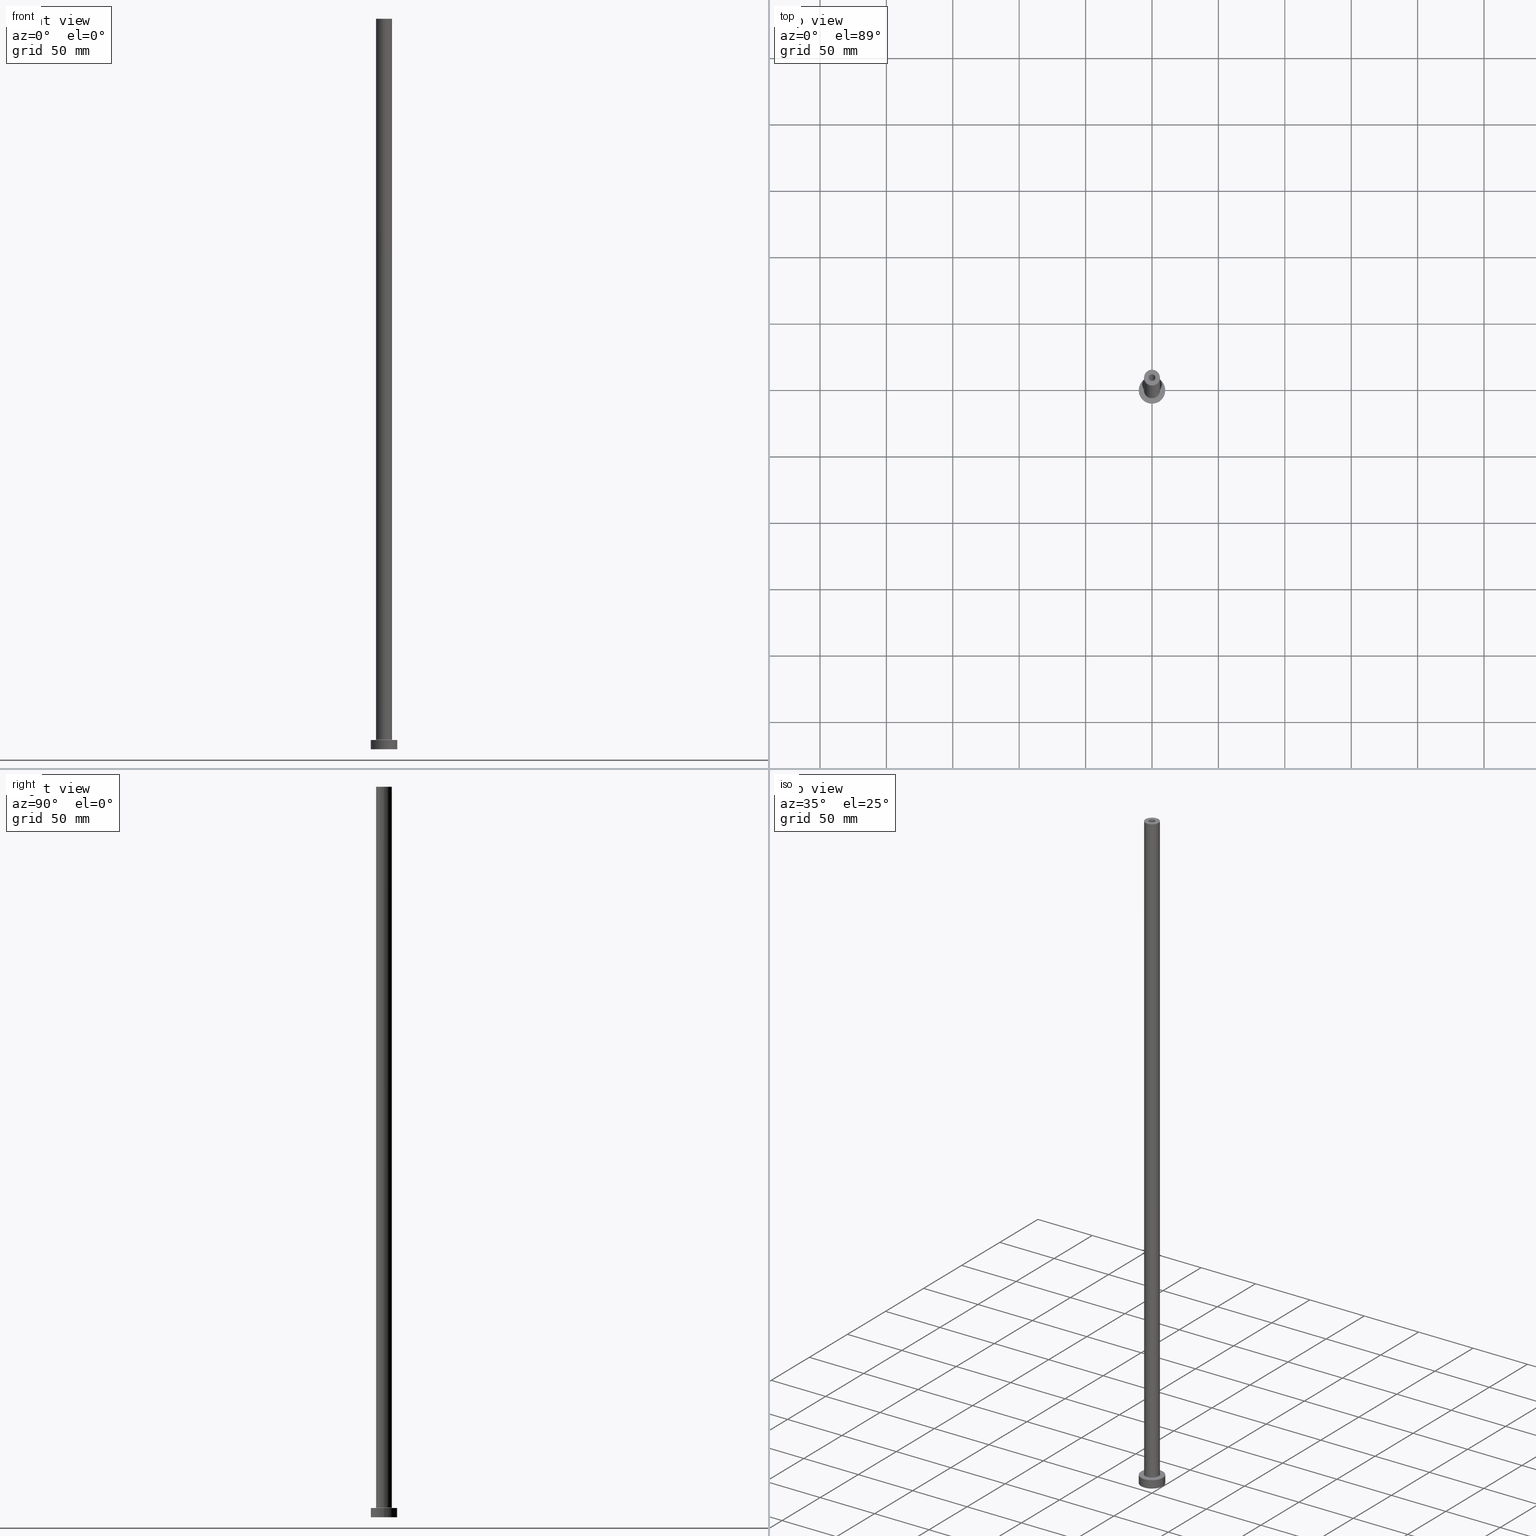
[diagram: canonical four-view strip — front | top / right | iso, engineering-drawing reading convention]
A machine part, canonical four-view strip (front | top / right | iso — engineering-drawing reading convention). The complete STEP part file that produces these views, byte-faithful:
ISO-10303-21;
HEADER;
FILE_DESCRIPTION (( 'STEP AP203' ),
    '1' );
FILE_NAME ('30f0.STEP',
    '2023-02-13T16:44:49',
    ( '' ),
    ( '' ),
    'SwSTEP 2.0',
    'SolidWorks 2019',
    '' );
FILE_SCHEMA (( 'CONFIG_CONTROL_DESIGN' ));
ENDSEC;

DATA;
#1 = EDGE_CURVE ( 'NONE', #317, #114, #334, .T. ) ;
#2 = PERSON_AND_ORGANIZATION ( #425, #421 ) ;
#3 = AXIS2_PLACEMENT_3D ( 'NONE', #274, #424, #40 ) ;
#4 = DIRECTION ( 'NONE',  ( -0.000000000000000000, -0.000000000000000000, -1.000000000000000000 ) ) ;
#5 = ADVANCED_FACE ( 'NONE', ( #433 ), #291, .T. ) ;
#6 = EDGE_CURVE ( 'NONE', #455, #393, #116, .T. ) ;
#7 = FACE_BOUND ( 'NONE', #322, .T. ) ;
#8 = VECTOR ( 'NONE', #192, 1000.000000000000000 ) ;
#9 = AXIS2_PLACEMENT_3D ( 'NONE', #20, #124, #376 ) ;
#10 = DIRECTION ( 'NONE',  ( 1.000000000000000000, 0.000000000000000000, 0.000000000000000000 ) ) ;
#11 = CARTESIAN_POINT ( 'NONE',  ( 0.000000000000000000, 0.000000000000000000, 0.000000000000000000 ) ) ;
#12 = ORIENTED_EDGE ( 'NONE', *, *, #32, .T. ) ;
#13 = EDGE_CURVE ( 'NONE', #261, #162, #223, .T. ) ;
#14 = CARTESIAN_POINT ( 'NONE',  ( 0.000000000000000000, 0.000000000000000000, 505.0000000000000000 ) ) ;
#15 = VERTEX_POINT ( 'NONE', #372 ) ;
#16 = CARTESIAN_POINT ( 'NONE',  ( 6.500000000000000888, 0.000000000000000000, 7.499999999999951150 ) ) ;
#17 = EDGE_LOOP ( 'NONE', ( #111, #300, #202, #135 ) ) ;
#18 = CARTESIAN_POINT ( 'NONE',  ( 0.000000000000000000, 0.000000000000000000, 550.0000000000000000 ) ) ;
#19 = CIRCLE ( 'NONE', #451, 2.649999999999999911 ) ;
#20 = CARTESIAN_POINT ( 'NONE',  ( 0.000000000000000000, 0.000000000000000000, 550.0000000000000000 ) ) ;
#21 = ORIENTED_EDGE ( 'NONE', *, *, #394, .F. ) ;
#22 = APPLICATION_CONTEXT ( 'configuration controlled 3d designs of mechanical parts and assemblies' ) ;
#23 = ORIENTED_EDGE ( 'NONE', *, *, #80, .F. ) ;
#24 = CC_DESIGN_PERSON_AND_ORGANIZATION_ASSIGNMENT ( #454, #445, ( #305 ) ) ;
#25 = DIRECTION ( 'NONE',  ( 1.000000000000000000, 0.000000000000000000, -0.000000000000000000 ) ) ;
#26 = DATE_AND_TIME ( #352, #168 ) ;
#27 = ORIENTED_EDGE ( 'NONE', *, *, #52, .F. ) ;
#28 = CARTESIAN_POINT ( 'NONE',  ( 0.000000000000000000, 0.000000000000000000, 0.000000000000000000 ) ) ;
#29 = AXIS2_PLACEMENT_3D ( 'NONE', #16, #49, #380 ) ;
#30 = DATE_AND_TIME ( #247, #55 ) ;
#31 = LOCAL_TIME ( 17, 44, 49.00000000000000000, #215 ) ;
#32 = EDGE_CURVE ( 'NONE', #76, #423, #47, .T. ) ;
#33 = CARTESIAN_POINT ( 'NONE',  ( 0.000000000000000000, 0.000000000000000000, 550.0000000000000000 ) ) ;
#34 = DIRECTION ( 'NONE',  ( 0.000000000000000000, 0.000000000000000000, 1.000000000000000000 ) ) ;
#35 = ORIENTED_EDGE ( 'NONE', *, *, #198, .F. ) ;
#36 = APPLICATION_CONTEXT ( 'configuration controlled 3d designs of mechanical parts and assemblies' ) ;
#37 = FACE_OUTER_BOUND ( 'NONE', #416, .T. ) ;
#38 = APPROVAL_DATE_TIME ( #26, #207 ) ;
#39 = EDGE_LOOP ( 'NONE', ( #241, #248 ) ) ;
#40 = DIRECTION ( 'NONE',  ( -1.000000000000000000, 0.000000000000000000, 0.000000000000000000 ) ) ;
#41 = CARTESIAN_POINT ( 'NONE',  ( 0.000000000000000000, 0.000000000000000000, 550.0000000000000000 ) ) ;
#42 = VECTOR ( 'NONE', #282, 1000.000000000000000 ) ;
#43 = CARTESIAN_POINT ( 'NONE',  ( 0.000000000000000000, 0.000000000000000000, 7.000000000000000000 ) ) ;
#44 = DIRECTION ( 'NONE',  ( 1.000000000000000000, 0.000000000000000000, 0.000000000000000000 ) ) ;
#45 = APPROVAL_PERSON_ORGANIZATION ( #146, #115, #447 ) ;
#46 = EDGE_CURVE ( 'NONE', #440, #455, #155, .T. ) ;
#47 = LINE ( 'NONE', #369, #418 ) ;
#48 = FACE_OUTER_BOUND ( 'NONE', #233, .T. ) ;
#49 = DIRECTION ( 'NONE',  ( 0.000000000000000000, -1.000000000000000000, 0.000000000000000000 ) ) ;
#50 = AXIS2_PLACEMENT_3D ( 'NONE', #410, #439, #266 ) ;
#51 = ORIENTED_EDGE ( 'NONE', *, *, #434, .F. ) ;
#52 = EDGE_CURVE ( 'NONE', #15, #261, #292, .T. ) ;
#53 = AXIS2_PLACEMENT_3D ( 'NONE', #456, #96, #242 ) ;
#54 =( GEOMETRIC_REPRESENTATION_CONTEXT ( 3 ) GLOBAL_UNCERTAINTY_ASSIGNED_CONTEXT ( ( #302 ) ) GLOBAL_UNIT_ASSIGNED_CONTEXT ( ( #268, #243, #240 ) ) REPRESENTATION_CONTEXT ( 'NONE', 'WORKASPACE' ) );
#55 = LOCAL_TIME ( 17, 44, 49.00000000000000000, #209 ) ;
#56 = PLANE ( 'NONE',  #50 ) ;
#57 = ORIENTED_EDGE ( 'NONE', *, *, #1, .F. ) ;
#58 = ADVANCED_FACE ( 'NONE', ( #81 ), #366, .F. ) ;
#59 = DIRECTION ( 'NONE',  ( 1.000000000000000000, 0.000000000000000000, 0.000000000000000000 ) ) ;
#60 = DESIGN_CONTEXT ( 'detailed design', #36, 'design' ) ;
#61 = VERTEX_POINT ( 'NONE', #260 ) ;
#62 = FACE_OUTER_BOUND ( 'NONE', #17, .T. ) ;
#63 = CC_DESIGN_DATE_AND_TIME_ASSIGNMENT ( #370, #219, ( #331 ) ) ;
#64 = DATE_TIME_ROLE ( 'creation_date' ) ;
#65 = ORIENTED_EDGE ( 'NONE', *, *, #210, .T. ) ;
#66 = DIRECTION ( 'NONE',  ( 0.000000000000000000, 0.000000000000000000, -1.000000000000000000 ) ) ;
#67 = DATE_AND_TIME ( #356, #31 ) ;
#68 = ORIENTED_EDGE ( 'NONE', *, *, #1, .T. ) ;
#69 = FACE_OUTER_BOUND ( 'NONE', #411, .T. ) ;
#70 = PERSON_AND_ORGANIZATION ( #425, #421 ) ;
#71 = ORIENTED_EDGE ( 'NONE', *, *, #122, .T. ) ;
#72 = EDGE_CURVE ( 'NONE', #344, #162, #201, .T. ) ;
#73 = DIRECTION ( 'NONE',  ( 0.000000000000000000, 0.000000000000000000, 1.000000000000000000 ) ) ;
#74 = CIRCLE ( 'NONE', #89, 6.000000000000000888 ) ;
#75 = DIRECTION ( 'NONE',  ( 1.000000000000000000, 0.000000000000000000, 0.000000000000000000 ) ) ;
#76 = VERTEX_POINT ( 'NONE', #130 ) ;
#77 = DIRECTION ( 'NONE',  ( 1.000000000000000000, 0.000000000000000000, 0.000000000000000000 ) ) ;
#78 = ORIENTED_EDGE ( 'NONE', *, *, #453, .T. ) ;
#79 = CARTESIAN_POINT ( 'NONE',  ( 2.649999999999999911, 3.245314017740485962E-16, 512.4953318805775098 ) ) ;
#80 = EDGE_CURVE ( 'NONE', #61, #360, #199, .T. ) ;
#81 = FACE_OUTER_BOUND ( 'NONE', #357, .T. ) ;
#82 = PRODUCT_DEFINITION_SHAPE ( 'NONE', 'NONE',  #95 ) ;
#83 = CIRCLE ( 'NONE', #345, 6.500000000000000888 ) ;
#84 = COORDINATED_UNIVERSAL_TIME_OFFSET ( 1, 0, .AHEAD. ) ;
#85 = ADVANCED_FACE ( 'NONE', ( #7, #160 ), #56, .T. ) ;
#86 = CARTESIAN_POINT ( 'NONE',  ( 0.000000000000000000, 0.000000000000000000, 505.0000000000000000 ) ) ;
#87 = APPROVAL_PERSON_ORGANIZATION ( #420, #207, #363 ) ;
#88 = DIRECTION ( 'NONE',  ( 1.224646799147353207E-16, 1.000000000000000000, -0.000000000000000000 ) ) ;
#89 = AXIS2_PLACEMENT_3D ( 'NONE', #18, #441, #306 ) ;
#90 = CARTESIAN_POINT ( 'NONE',  ( 10.00000000000000000, 1.224646799147353256E-15, 7.000000000000000000 ) ) ;
#91 = ORIENTED_EDGE ( 'NONE', *, *, #295, .T. ) ;
#92 = CARTESIAN_POINT ( 'NONE',  ( 0.000000000000000000, 0.000000000000000000, 7.000000000000000000 ) ) ;
#93 = CYLINDRICAL_SURFACE ( 'NONE', #9, 2.500000000000000000 ) ;
#94 = ORIENTED_EDGE ( 'NONE', *, *, #148, .F. ) ;
#95 = PRODUCT_DEFINITION ( 'NEZN�M�', '', #305, #60 ) ;
#96 = DIRECTION ( 'NONE',  ( -0.000000000000000000, -0.000000000000000000, -1.000000000000000000 ) ) ;
#97 = PERSON_AND_ORGANIZATION ( #425, #421 ) ;
#98 = ORIENTED_EDGE ( 'NONE', *, *, #408, .F. ) ;
#99 = CARTESIAN_POINT ( 'NONE',  ( -2.649999999999999911, 0.000000000000000000, 0.000000000000000000 ) ) ;
#100 = PERSON_AND_ORGANIZATION_ROLE ( 'creator' ) ;
#101 = ORIENTED_EDGE ( 'NONE', *, *, #191, .T. ) ;
#102 = DIRECTION ( 'NONE',  ( -0.000000000000000000, -0.000000000000000000, -1.000000000000000000 ) ) ;
#103 = MECHANICAL_CONTEXT ( 'NONE', #22, 'mechanical' ) ;
#104 = ORIENTED_EDGE ( 'NONE', *, *, #46, .T. ) ;
#105 = ADVANCED_FACE ( 'NONE', ( #229 ), #197, .T. ) ;
#106 = DIRECTION ( 'NONE',  ( 0.000000000000000000, 0.000000000000000000, 1.000000000000000000 ) ) ;
#107 = CARTESIAN_POINT ( 'NONE',  ( -6.000000000000000888, 0.000000000000000000, 7.499999999999951150 ) ) ;
#108 = CLOSED_SHELL ( 'NONE', ( #58, #371, #323, #224, #5, #289, #85, #354, #105, #303, #276, #263, #390, #403 ) ) ;
#109 = CYLINDRICAL_SURFACE ( 'NONE', #167, 6.000000000000000888 ) ;
#110 = VECTOR ( 'NONE', #296, 1000.000000000000000 ) ;
#111 = ORIENTED_EDGE ( 'NONE', *, *, #6, .F. ) ;
#112 = ORIENTED_EDGE ( 'NONE', *, *, #72, .T. ) ;
#113 = LINE ( 'NONE', #79, #42 ) ;
#114 = VERTEX_POINT ( 'NONE', #443 ) ;
#115 = APPROVAL ( #385, 'NEUR�EN�' ) ;
#116 = CIRCLE ( 'NONE', #426, 6.000000000000000888 ) ;
#117 = CARTESIAN_POINT ( 'NONE',  ( -6.000000000000000888, 0.000000000000000000, 550.0000000000000000 ) ) ;
#118 = AXIS2_PLACEMENT_3D ( 'NONE', #11, #161, #297 ) ;
#119 = APPROVAL_DATE_TIME ( #156, #437 ) ;
#120 = DIRECTION ( 'NONE',  ( 1.000000000000000000, 0.000000000000000000, 0.000000000000000000 ) ) ;
#121 = DIRECTION ( 'NONE',  ( 1.000000000000000000, 0.000000000000000000, 0.000000000000000000 ) ) ;
#122 = EDGE_CURVE ( 'NONE', #393, #455, #129, .T. ) ;
#123 = DIRECTION ( 'NONE',  ( -0.000000000000000000, -0.000000000000000000, -1.000000000000000000 ) ) ;
#124 = DIRECTION ( 'NONE',  ( 0.000000000000000000, 0.000000000000000000, -1.000000000000000000 ) ) ;
#125 = ORIENTED_EDGE ( 'NONE', *, *, #394, .T. ) ;
#126 = PRODUCT_RELATED_PRODUCT_CATEGORY ( 'detail', '', ( #347 ) ) ;
#127 = CARTESIAN_POINT ( 'NONE',  ( 6.000000000000000888, 7.347880794884120722E-16, 550.0000000000000000 ) ) ;
#128 = ORIENTED_EDGE ( 'NONE', *, *, #187, .F. ) ;
#129 = CIRCLE ( 'NONE', #313, 6.000000000000000888 ) ;
#130 = CARTESIAN_POINT ( 'NONE',  ( -10.00000000000000000, 0.000000000000000000, 7.000000000000000000 ) ) ;
#131 = ORIENTED_EDGE ( 'NONE', *, *, #187, .T. ) ;
#132 = CARTESIAN_POINT ( 'NONE',  ( 0.000000000000000000, 0.000000000000000000, 7.499999999999951150 ) ) ;
#133 = CARTESIAN_POINT ( 'NONE',  ( 0.000000000000000000, 0.000000000000000000, 550.0000000000000000 ) ) ;
#134 = SECURITY_CLASSIFICATION_LEVEL ( 'unclassified' ) ;
#135 = ORIENTED_EDGE ( 'NONE', *, *, #163, .F. ) ;
#136 = DIRECTION ( 'NONE',  ( -1.000000000000000000, 0.000000000000000000, 0.000000000000000000 ) ) ;
#137 = PERSON_AND_ORGANIZATION ( #425, #421 ) ;
#138 = EDGE_CURVE ( 'NONE', #61, #238, #400, .T. ) ;
#139 = FACE_OUTER_BOUND ( 'NONE', #413, .T. ) ;
#140 = CIRCLE ( 'NONE', #367, 2.649999999999999911 ) ;
#141 = APPLICATION_PROTOCOL_DEFINITION ( 'international standard', 'config_control_design', 1994, #22 ) ;
#142 = CYLINDRICAL_SURFACE ( 'NONE', #3, 2.649999999999999911 ) ;
#143 = PERSON_AND_ORGANIZATION ( #425, #421 ) ;
#144 = ORIENTED_EDGE ( 'NONE', *, *, #408, .T. ) ;
#145 = CARTESIAN_POINT ( 'NONE',  ( 2.500000000000000000, 3.061616997868383141E-16, 505.0000000000000000 ) ) ;
#146 = PERSON_AND_ORGANIZATION ( #425, #421 ) ;
#147 = ORIENTED_EDGE ( 'NONE', *, *, #178, .T. ) ;
#148 = EDGE_CURVE ( 'NONE', #432, #393, #375, .T. ) ;
#149 = DIRECTION ( 'NONE',  ( 0.000000000000000000, 0.000000000000000000, 1.000000000000000000 ) ) ;
#150 = CIRCLE ( 'NONE', #324, 0.5000000000000004441 ) ;
#151 = ORIENTED_EDGE ( 'NONE', *, *, #173, .F. ) ;
#152 = CC_DESIGN_APPROVAL ( #207, ( #305 ) ) ;
#153 = MANIFOLD_SOLID_BREP ( 'Odebrat vysunut�m4', #108 ) ;
#154 = CC_DESIGN_PERSON_AND_ORGANIZATION_ASSIGNMENT ( #70, #457, ( #347 ) ) ;
#155 = LINE ( 'NONE', #117, #220 ) ;
#156 = DATE_AND_TIME ( #250, #339 ) ;
#157 = CIRCLE ( 'NONE', #245, 2.500000000000000000 ) ;
#158 = DIRECTION ( 'NONE',  ( -0.000000000000000000, -0.000000000000000000, -1.000000000000000000 ) ) ;
#159 = CIRCLE ( 'NONE', #118, 10.00000000000000000 ) ;
#160 = FACE_OUTER_BOUND ( 'NONE', #231, .T. ) ;
#161 = DIRECTION ( 'NONE',  ( 0.000000000000000000, 0.000000000000000000, 1.000000000000000000 ) ) ;
#162 = VERTEX_POINT ( 'NONE', #301 ) ;
#163 = EDGE_CURVE ( 'NONE', #393, #114, #258, .T. ) ;
#164 = DIRECTION ( 'NONE',  ( 0.000000000000000000, 0.000000000000000000, 1.000000000000000000 ) ) ;
#165 = EDGE_LOOP ( 'NONE', ( #94, #98, #104, #277 ) ) ;
#166 = CARTESIAN_POINT ( 'NONE',  ( 0.000000000000000000, 0.000000000000000000, 0.000000000000000000 ) ) ;
#167 = AXIS2_PLACEMENT_3D ( 'NONE', #321, #361, #136 ) ;
#168 = LOCAL_TIME ( 17, 44, 49.00000000000000000, #316 ) ;
#169 = CARTESIAN_POINT ( 'NONE',  ( -2.649999999999999911, 0.000000000000000000, 512.4953318805775098 ) ) ;
#170 = CARTESIAN_POINT ( 'NONE',  ( 0.000000000000000000, 0.000000000000000000, 550.0000000000000000 ) ) ;
#171 = CARTESIAN_POINT ( 'NONE',  ( 0.000000000000000000, 0.000000000000000000, 7.499999999999951150 ) ) ;
#172 = ORIENTED_EDGE ( 'NONE', *, *, #434, .T. ) ;
#173 = EDGE_CURVE ( 'NONE', #423, #329, #253, .T. ) ;
#174 = DIRECTION ( 'NONE',  ( 0.000000000000000000, 0.000000000000000000, 1.000000000000000000 ) ) ;
#175 = DIRECTION ( 'NONE',  ( 1.000000000000000000, 0.000000000000000000, 0.000000000000000000 ) ) ;
#176 = ORIENTED_EDGE ( 'NONE', *, *, #163, .T. ) ;
#177 = CARTESIAN_POINT ( 'NONE',  ( 0.000000000000000000, 0.000000000000000000, 512.4953318805775098 ) ) ;
#178 = EDGE_CURVE ( 'NONE', #114, #317, #83, .T. ) ;
#179 = APPLICATION_PROTOCOL_DEFINITION ( 'international standard', 'config_control_design', 1994, #36 ) ;
#180 = ORIENTED_EDGE ( 'NONE', *, *, #362, .T. ) ;
#181 = ORIENTED_EDGE ( 'NONE', *, *, #13, .F. ) ;
#182 = CARTESIAN_POINT ( 'NONE',  ( -6.500000000000000888, 7.960204194457796463E-16, 6.999999999999975131 ) ) ;
#183 = ORIENTED_EDGE ( 'NONE', *, *, #80, .T. ) ;
#184 = CARTESIAN_POINT ( 'NONE',  ( 2.649999999999999911, 3.245314017740485962E-16, 0.000000000000000000 ) ) ;
#185 = CIRCLE ( 'NONE', #235, 2.649999999999999911 ) ;
#186 = DIRECTION ( 'NONE',  ( 0.000000000000000000, 0.000000000000000000, -1.000000000000000000 ) ) ;
#187 = EDGE_CURVE ( 'NONE', #15, #344, #330, .T. ) ;
#188 = DIRECTION ( 'NONE',  ( 0.000000000000000000, 0.000000000000000000, 1.000000000000000000 ) ) ;
#189 = AXIS2_PLACEMENT_3D ( 'NONE', #218, #149, #249 ) ;
#190 = APPROVAL_PERSON_ORGANIZATION ( #2, #437, #290 ) ;
#191 = EDGE_CURVE ( 'NONE', #432, #440, #74, .T. ) ;
#192 = DIRECTION ( 'NONE',  ( 0.000000000000000000, 0.000000000000000000, -1.000000000000000000 ) ) ;
#193 = CC_DESIGN_PERSON_AND_ORGANIZATION_ASSIGNMENT ( #97, #307, ( #305 ) ) ;
#194 = VECTOR ( 'NONE', #398, 1000.000000000000000 ) ;
#195 = ORIENTED_EDGE ( 'NONE', *, *, #148, .T. ) ;
#196 = AXIS2_PLACEMENT_3D ( 'NONE', #33, #239, #391 ) ;
#197 = CYLINDRICAL_SURFACE ( 'NONE', #234, 6.000000000000000888 ) ;
#198 = EDGE_CURVE ( 'NONE', #455, #317, #150, .T. ) ;
#199 = LINE ( 'NONE', #169, #8 ) ;
#200 = VERTEX_POINT ( 'NONE', #412 ) ;
#201 = LINE ( 'NONE', #409, #406 ) ;
#202 = ORIENTED_EDGE ( 'NONE', *, *, #178, .F. ) ;
#203 = TOROIDAL_SURFACE ( 'NONE', #211, 6.500000000000000888, 0.5000000000000000000 ) ;
#204 = CARTESIAN_POINT ( 'NONE',  ( 2.649999999999999911, 3.245314017740485962E-16, 505.0000000000000000 ) ) ;
#205 = EDGE_LOOP ( 'NONE', ( #144, #101 ) ) ;
#206 = DIRECTION ( 'NONE',  ( 0.000000000000000000, 0.000000000000000000, 1.000000000000000000 ) ) ;
#207 = APPROVAL ( #237, 'NEUR�EN�' ) ;
#208 = FACE_BOUND ( 'NONE', #383, .T. ) ;
#209 = COORDINATED_UNIVERSAL_TIME_OFFSET ( 1, 0, .AHEAD. ) ;
#210 = EDGE_CURVE ( 'NONE', #200, #329, #227, .T. ) ;
#211 = AXIS2_PLACEMENT_3D ( 'NONE', #309, #106, #77 ) ;
#212 = CARTESIAN_POINT ( 'NONE',  ( 10.00000000000000000, 1.224646799147353256E-15, 0.000000000000000000 ) ) ;
#213 = CARTESIAN_POINT ( 'NONE',  ( 0.000000000000000000, 0.000000000000000000, 0.000000000000000000 ) ) ;
#214 = DIRECTION ( 'NONE',  ( 1.000000000000000000, 0.000000000000000000, 0.000000000000000000 ) ) ;
#215 = COORDINATED_UNIVERSAL_TIME_OFFSET ( 1, 0, .AHEAD. ) ;
#216 = ORIENTED_EDGE ( 'NONE', *, *, #251, .T. ) ;
#217 = ORIENTED_EDGE ( 'NONE', *, *, #122, .F. ) ;
#218 = CARTESIAN_POINT ( 'NONE',  ( 0.000000000000000000, 0.000000000000000000, 505.0000000000000000 ) ) ;
#219 = DATE_TIME_ROLE ( 'classification_date' ) ;
#220 = VECTOR ( 'NONE', #158, 1000.000000000000000 ) ;
#221 = AXIS2_PLACEMENT_3D ( 'NONE', #351, #174, #310 ) ;
#222 = DIRECTION ( 'NONE',  ( 0.000000000000000000, 0.000000000000000000, 1.000000000000000000 ) ) ;
#223 = CIRCLE ( 'NONE', #449, 2.500000000000000000 ) ;
#224 = ADVANCED_FACE ( 'NONE', ( #48 ), #109, .T. ) ;
#225 = ORIENTED_EDGE ( 'NONE', *, *, #333, .F. ) ;
#226 = AXIS2_PLACEMENT_3D ( 'NONE', #279, #34, #311 ) ;
#227 = LINE ( 'NONE', #90, #110 ) ;
#228 = DIRECTION ( 'NONE',  ( 0.000000000000000000, 0.000000000000000000, 1.000000000000000000 ) ) ;
#229 = FACE_OUTER_BOUND ( 'NONE', #165, .T. ) ;
#230 = VECTOR ( 'NONE', #264, 1000.000000000000000 ) ;
#231 = EDGE_LOOP ( 'NONE', ( #180, #78 ) ) ;
#232 = DIRECTION ( 'NONE',  ( 0.000000000000000000, 0.000000000000000000, -1.000000000000000000 ) ) ;
#233 = EDGE_LOOP ( 'NONE', ( #353, #195, #71, #381 ) ) ;
#234 = AXIS2_PLACEMENT_3D ( 'NONE', #341, #123, #340 ) ;
#235 = AXIS2_PLACEMENT_3D ( 'NONE', #236, #359, #450 ) ;
#236 = CARTESIAN_POINT ( 'NONE',  ( 0.000000000000000000, 0.000000000000000000, 505.0000000000000000 ) ) ;
#237 = APPROVAL_STATUS ( 'not_yet_approved' ) ;
#238 = VERTEX_POINT ( 'NONE', #204 ) ;
#239 = DIRECTION ( 'NONE',  ( 0.000000000000000000, 0.000000000000000000, 1.000000000000000000 ) ) ;
#240 =( NAMED_UNIT ( * ) SI_UNIT ( $, .STERADIAN. ) SOLID_ANGLE_UNIT ( ) );
#241 = ORIENTED_EDGE ( 'NONE', *, *, #138, .F. ) ;
#242 = DIRECTION ( 'NONE',  ( -1.000000000000000000, 0.000000000000000000, 0.000000000000000000 ) ) ;
#243 =( NAMED_UNIT ( * ) PLANE_ANGLE_UNIT ( ) SI_UNIT ( $, .RADIAN. ) );
#244 = ORIENTED_EDGE ( 'NONE', *, *, #295, .F. ) ;
#245 = AXIS2_PLACEMENT_3D ( 'NONE', #133, #319, #267 ) ;
#246 = DIRECTION ( 'NONE',  ( -1.000000000000000000, 0.000000000000000000, 0.000000000000000000 ) ) ;
#247 = CALENDAR_DATE ( 2023, 13, 2 ) ;
#248 = ORIENTED_EDGE ( 'NONE', *, *, #283, .F. ) ;
#249 = DIRECTION ( 'NONE',  ( 1.000000000000000000, 0.000000000000000000, -0.000000000000000000 ) ) ;
#250 = CALENDAR_DATE ( 2023, 13, 2 ) ;
#251 = EDGE_CURVE ( 'NONE', #344, #15, #157, .T. ) ;
#252 = DIRECTION ( 'NONE',  ( -0.000000000000000000, -0.000000000000000000, -1.000000000000000000 ) ) ;
#253 = CIRCLE ( 'NONE', #373, 10.00000000000000000 ) ;
#254 = LOCAL_TIME ( 17, 44, 49.00000000000000000, #327 ) ;
#255 = CARTESIAN_POINT ( 'NONE',  ( 0.000000000000000000, 0.000000000000000000, 7.000000000000000000 ) ) ;
#256 = ORIENTED_EDGE ( 'NONE', *, *, #210, .F. ) ;
#257 = DIRECTION ( 'NONE',  ( 1.000000000000000000, 0.000000000000000000, 0.000000000000000000 ) ) ;
#258 = CIRCLE ( 'NONE', #29, 0.5000000000000004441 ) ;
#259 = CARTESIAN_POINT ( 'NONE',  ( -10.00000000000000000, 0.000000000000000000, 0.000000000000000000 ) ) ;
#260 = CARTESIAN_POINT ( 'NONE',  ( -2.649999999999999911, 0.000000000000000000, 505.0000000000000000 ) ) ;
#261 = VERTEX_POINT ( 'NONE', #145 ) ;
#262 = DIRECTION ( 'NONE',  ( -0.000000000000000000, -0.000000000000000000, -1.000000000000000000 ) ) ;
#263 = ADVANCED_FACE ( 'NONE', ( #37 ), #419, .F. ) ;
#264 = DIRECTION ( 'NONE',  ( -0.000000000000000000, -0.000000000000000000, -1.000000000000000000 ) ) ;
#265 = AXIS2_PLACEMENT_3D ( 'NONE', #14, #378, #257 ) ;
#266 = DIRECTION ( 'NONE',  ( 1.000000000000000000, 0.000000000000000000, -0.000000000000000000 ) ) ;
#267 = DIRECTION ( 'NONE',  ( 1.000000000000000000, 0.000000000000000000, 0.000000000000000000 ) ) ;
#268 =( LENGTH_UNIT ( ) NAMED_UNIT ( * ) SI_UNIT ( .MILLI., .METRE. ) );
#269 = CC_DESIGN_PERSON_AND_ORGANIZATION_ASSIGNMENT ( #137, #100, ( #95 ) ) ;
#270 = DIRECTION ( 'NONE',  ( 1.000000000000000000, 0.000000000000000000, 0.000000000000000000 ) ) ;
#271 = ORIENTED_EDGE ( 'NONE', *, *, #314, .T. ) ;
#272 = FACE_OUTER_BOUND ( 'NONE', #298, .T. ) ;
#273 = APPROVAL_DATE_TIME ( #30, #115 ) ;
#274 = CARTESIAN_POINT ( 'NONE',  ( 0.000000000000000000, 0.000000000000000000, 512.4953318805775098 ) ) ;
#275 = PERSON_AND_ORGANIZATION_ROLE ( 'classification_officer' ) ;
#276 = ADVANCED_FACE ( 'NONE', ( #272 ), #203, .F. ) ;
#277 = ORIENTED_EDGE ( 'NONE', *, *, #6, .T. ) ;
#278 = CARTESIAN_POINT ( 'NONE',  ( -2.500000000000000000, 0.000000000000000000, 550.0000000000000000 ) ) ;
#279 = CARTESIAN_POINT ( 'NONE',  ( 0.000000000000000000, 0.000000000000000000, 7.000000000000000000 ) ) ;
#280 = ORIENTED_EDGE ( 'NONE', *, *, #13, .T. ) ;
#281 = AXIS2_PLACEMENT_3D ( 'NONE', #177, #66, #246 ) ;
#282 = DIRECTION ( 'NONE',  ( 0.000000000000000000, 0.000000000000000000, -1.000000000000000000 ) ) ;
#283 = EDGE_CURVE ( 'NONE', #238, #61, #185, .T. ) ;
#284 = CALENDAR_DATE ( 2023, 13, 2 ) ;
#285 = SHAPE_DEFINITION_REPRESENTATION ( #82, #350 ) ;
#286 = AXIS2_PLACEMENT_3D ( 'NONE', #41, #186, #325 ) ;
#287 = AXIS2_PLACEMENT_3D ( 'NONE', #171, #73, #175 ) ;
#288 = CC_DESIGN_APPROVAL ( #115, ( #95 ) ) ;
#289 = ADVANCED_FACE ( 'NONE', ( #69 ), #417, .T. ) ;
#290 = APPROVAL_ROLE ( '' ) ;
#291 = CYLINDRICAL_SURFACE ( 'NONE', #365, 10.00000000000000000 ) ;
#292 = LINE ( 'NONE', #435, #194 ) ;
#293 = AXIS2_PLACEMENT_3D ( 'NONE', #355, #395, #25 ) ;
#294 = ORIENTED_EDGE ( 'NONE', *, *, #173, .T. ) ;
#295 = EDGE_CURVE ( 'NONE', #360, #377, #140, .T. ) ;
#296 = DIRECTION ( 'NONE',  ( -0.000000000000000000, -0.000000000000000000, -1.000000000000000000 ) ) ;
#297 = DIRECTION ( 'NONE',  ( 1.000000000000000000, 0.000000000000000000, 0.000000000000000000 ) ) ;
#298 = EDGE_LOOP ( 'NONE', ( #35, #217, #176, #57 ) ) ;
#299 = DIRECTION ( 'NONE',  ( 1.000000000000000000, 0.000000000000000000, 0.000000000000000000 ) ) ;
#300 = ORIENTED_EDGE ( 'NONE', *, *, #198, .T. ) ;
#301 = CARTESIAN_POINT ( 'NONE',  ( -2.500000000000000000, 0.000000000000000000, 505.0000000000000000 ) ) ;
#302 = UNCERTAINTY_MEASURE_WITH_UNIT (LENGTH_MEASURE( 1.000000000000000082E-05 ), #268, 'distance_accuracy_value', 'NONE');
#303 = ADVANCED_FACE ( 'NONE', ( #452, #346 ), #387, .T. ) ;
#304 = CIRCLE ( 'NONE', #312, 6.000000000000000888 ) ;
#305 = PRODUCT_DEFINITION_FORMATION_WITH_SPECIFIED_SOURCE ( 'LIBOVOLN�', '', #347, .NOT_KNOWN. ) ;
#306 = DIRECTION ( 'NONE',  ( 1.000000000000000000, 0.000000000000000000, 0.000000000000000000 ) ) ;
#307 = PERSON_AND_ORGANIZATION_ROLE ( 'creator' ) ;
#308 = ORIENTED_EDGE ( 'NONE', *, *, #32, .F. ) ;
#309 = CARTESIAN_POINT ( 'NONE',  ( 0.000000000000000000, 0.000000000000000000, 7.499999999999951150 ) ) ;
#310 = DIRECTION ( 'NONE',  ( 1.000000000000000000, 0.000000000000000000, 0.000000000000000000 ) ) ;
#311 = DIRECTION ( 'NONE',  ( 1.000000000000000000, 0.000000000000000000, 0.000000000000000000 ) ) ;
#312 = AXIS2_PLACEMENT_3D ( 'NONE', #170, #436, #121 ) ;
#313 = AXIS2_PLACEMENT_3D ( 'NONE', #132, #228, #382 ) ;
#314 = EDGE_CURVE ( 'NONE', #377, #360, #19, .T. ) ;
#315 = CARTESIAN_POINT ( 'NONE',  ( 0.000000000000000000, 0.000000000000000000, 505.0000000000000000 ) ) ;
#316 = COORDINATED_UNIVERSAL_TIME_OFFSET ( 1, 0, .AHEAD. ) ;
#317 = VERTEX_POINT ( 'NONE', #182 ) ;
#318 = EDGE_LOOP ( 'NONE', ( #342, #128 ) ) ;
#319 = DIRECTION ( 'NONE',  ( 0.000000000000000000, 0.000000000000000000, 1.000000000000000000 ) ) ;
#320 = ORIENTED_EDGE ( 'NONE', *, *, #72, .F. ) ;
#321 = CARTESIAN_POINT ( 'NONE',  ( 0.000000000000000000, 0.000000000000000000, 550.0000000000000000 ) ) ;
#322 = EDGE_LOOP ( 'NONE', ( #147, #68 ) ) ;
#323 = ADVANCED_FACE ( 'NONE', ( #62 ), #444, .F. ) ;
#324 = AXIS2_PLACEMENT_3D ( 'NONE', #407, #88, #335 ) ;
#325 = DIRECTION ( 'NONE',  ( -1.000000000000000000, 0.000000000000000000, 0.000000000000000000 ) ) ;
#326 = ORIENTED_EDGE ( 'NONE', *, *, #333, .T. ) ;
#327 = COORDINATED_UNIVERSAL_TIME_OFFSET ( 1, 0, .AHEAD. ) ;
#328 = AXIS2_PLACEMENT_3D ( 'NONE', #255, #4, #402 ) ;
#329 = VERTEX_POINT ( 'NONE', #212 ) ;
#330 = CIRCLE ( 'NONE', #438, 2.500000000000000000 ) ;
#331 = SECURITY_CLASSIFICATION ( '', '', #134 ) ;
#332 = DIRECTION ( 'NONE',  ( -0.000000000000000000, -0.000000000000000000, -1.000000000000000000 ) ) ;
#333 = EDGE_CURVE ( 'NONE', #162, #261, #461, .T. ) ;
#334 = CIRCLE ( 'NONE', #328, 6.500000000000000888 ) ;
#335 = DIRECTION ( 'NONE',  ( -1.000000000000000000, 1.224646799147351482E-16, 0.000000000000000000 ) ) ;
#336 = CIRCLE ( 'NONE', #221, 10.00000000000000000 ) ;
#337 = CARTESIAN_POINT ( 'NONE',  ( 6.000000000000000888, 7.347880794884120722E-16, 550.0000000000000000 ) ) ;
#338 = EDGE_LOOP ( 'NONE', ( #151, #51 ) ) ;
#339 = LOCAL_TIME ( 17, 44, 49.00000000000000000, #84 ) ;
#340 = DIRECTION ( 'NONE',  ( -1.000000000000000000, 0.000000000000000000, 0.000000000000000000 ) ) ;
#341 = CARTESIAN_POINT ( 'NONE',  ( 0.000000000000000000, 0.000000000000000000, 550.0000000000000000 ) ) ;
#342 = ORIENTED_EDGE ( 'NONE', *, *, #251, .F. ) ;
#343 = CARTESIAN_POINT ( 'NONE',  ( 0.000000000000000000, 0.000000000000000000, 550.0000000000000000 ) ) ;
#344 = VERTEX_POINT ( 'NONE', #278 ) ;
#345 = AXIS2_PLACEMENT_3D ( 'NONE', #92, #262, #59 ) ;
#346 = FACE_OUTER_BOUND ( 'NONE', #205, .T. ) ;
#347 = PRODUCT ( '30f0', '30f0', '', ( #103 ) ) ;
#348 = DIRECTION ( 'NONE',  ( 0.000000000000000000, 0.000000000000000000, 1.000000000000000000 ) ) ;
#349 = EDGE_LOOP ( 'NONE', ( #448, #65, #172, #308 ) ) ;
#350 = ADVANCED_BREP_SHAPE_REPRESENTATION ( '30f0', ( #153, #401 ), #54 ) ;
#351 = CARTESIAN_POINT ( 'NONE',  ( 0.000000000000000000, 0.000000000000000000, 7.000000000000000000 ) ) ;
#352 = CALENDAR_DATE ( 2023, 13, 2 ) ;
#353 = ORIENTED_EDGE ( 'NONE', *, *, #191, .F. ) ;
#354 = ADVANCED_FACE ( 'NONE', ( #208, #446 ), #427, .F. ) ;
#355 = CARTESIAN_POINT ( 'NONE',  ( 0.000000000000000000, 0.000000000000000000, 0.000000000000000000 ) ) ;
#356 = CALENDAR_DATE ( 2023, 13, 2 ) ;
#357 = EDGE_LOOP ( 'NONE', ( #216, #396, #225, #320 ) ) ;
#358 = AXIS2_PLACEMENT_3D ( 'NONE', #315, #206, #422 ) ;
#359 = DIRECTION ( 'NONE',  ( 0.000000000000000000, 0.000000000000000000, 1.000000000000000000 ) ) ;
#360 = VERTEX_POINT ( 'NONE', #99 ) ;
#361 = DIRECTION ( 'NONE',  ( -0.000000000000000000, -0.000000000000000000, -1.000000000000000000 ) ) ;
#362 = EDGE_CURVE ( 'NONE', #76, #200, #336, .T. ) ;
#363 = APPROVAL_ROLE ( '' ) ;
#364 = FACE_OUTER_BOUND ( 'NONE', #39, .T. ) ;
#365 = AXIS2_PLACEMENT_3D ( 'NONE', #43, #252, #374 ) ;
#366 = CYLINDRICAL_SURFACE ( 'NONE', #286, 2.500000000000000000 ) ;
#367 = AXIS2_PLACEMENT_3D ( 'NONE', #28, #384, #214 ) ;
#368 = CC_DESIGN_SECURITY_CLASSIFICATION ( #331, ( #305 ) ) ;
#369 = CARTESIAN_POINT ( 'NONE',  ( -10.00000000000000000, 0.000000000000000000, 7.000000000000000000 ) ) ;
#370 = DATE_AND_TIME ( #284, #254 ) ;
#371 = ADVANCED_FACE ( 'NONE', ( #139 ), #142, .F. ) ;
#372 = CARTESIAN_POINT ( 'NONE',  ( 2.500000000000000000, 3.061616997868383141E-16, 550.0000000000000000 ) ) ;
#373 = AXIS2_PLACEMENT_3D ( 'NONE', #166, #414, #10 ) ;
#374 = DIRECTION ( 'NONE',  ( -1.000000000000000000, 0.000000000000000000, 0.000000000000000000 ) ) ;
#375 = LINE ( 'NONE', #127, #230 ) ;
#376 = DIRECTION ( 'NONE',  ( -1.000000000000000000, 0.000000000000000000, 0.000000000000000000 ) ) ;
#377 = VERTEX_POINT ( 'NONE', #184 ) ;
#378 = DIRECTION ( 'NONE',  ( 0.000000000000000000, 0.000000000000000000, 1.000000000000000000 ) ) ;
#379 = CC_DESIGN_PERSON_AND_ORGANIZATION_ASSIGNMENT ( #143, #275, ( #331 ) ) ;
#380 = DIRECTION ( 'NONE',  ( 0.000000000000000000, 0.000000000000000000, -1.000000000000000000 ) ) ;
#381 = ORIENTED_EDGE ( 'NONE', *, *, #46, .F. ) ;
#382 = DIRECTION ( 'NONE',  ( 1.000000000000000000, 0.000000000000000000, 0.000000000000000000 ) ) ;
#383 = EDGE_LOOP ( 'NONE', ( #244, #458 ) ) ;
#384 = DIRECTION ( 'NONE',  ( -0.000000000000000000, -0.000000000000000000, -1.000000000000000000 ) ) ;
#385 = APPROVAL_STATUS ( 'not_yet_approved' ) ;
#386 = CC_DESIGN_APPROVAL ( #437, ( #331 ) ) ;
#387 = PLANE ( 'NONE',  #196 ) ;
#388 = CARTESIAN_POINT ( 'NONE',  ( -6.000000000000000888, 0.000000000000000000, 550.0000000000000000 ) ) ;
#389 = EDGE_LOOP ( 'NONE', ( #27, #131, #112, #181 ) ) ;
#390 = ADVANCED_FACE ( 'NONE', ( #397, #364 ), #459, .F. ) ;
#391 = DIRECTION ( 'NONE',  ( 1.000000000000000000, 0.000000000000000000, -0.000000000000000000 ) ) ;
#392 = CARTESIAN_POINT ( 'NONE',  ( 0.000000000000000000, 0.000000000000000000, 0.000000000000000000 ) ) ;
#393 = VERTEX_POINT ( 'NONE', #431 ) ;
#394 = EDGE_CURVE ( 'NONE', #238, #377, #113, .T. ) ;
#395 = DIRECTION ( 'NONE',  ( 0.000000000000000000, 0.000000000000000000, 1.000000000000000000 ) ) ;
#396 = ORIENTED_EDGE ( 'NONE', *, *, #52, .T. ) ;
#397 = FACE_BOUND ( 'NONE', #442, .T. ) ;
#398 = DIRECTION ( 'NONE',  ( 0.000000000000000000, 0.000000000000000000, -1.000000000000000000 ) ) ;
#399 = ORIENTED_EDGE ( 'NONE', *, *, #138, .T. ) ;
#400 = CIRCLE ( 'NONE', #265, 2.649999999999999911 ) ;
#401 = AXIS2_PLACEMENT_3D ( 'NONE', #213, #348, #75 ) ;
#402 = DIRECTION ( 'NONE',  ( 1.000000000000000000, 0.000000000000000000, 0.000000000000000000 ) ) ;
#403 = ADVANCED_FACE ( 'NONE', ( #415 ), #93, .F. ) ;
#404 = CARTESIAN_POINT ( 'NONE',  ( 0.000000000000000000, 0.000000000000000000, 7.499999999999951150 ) ) ;
#405 = APPROVAL_STATUS ( 'not_yet_approved' ) ;
#406 = VECTOR ( 'NONE', #232, 1000.000000000000000 ) ;
#407 = CARTESIAN_POINT ( 'NONE',  ( -6.500000000000000888, 7.960204194457796463E-16, 7.499999999999951150 ) ) ;
#408 = EDGE_CURVE ( 'NONE', #440, #432, #304, .T. ) ;
#409 = CARTESIAN_POINT ( 'NONE',  ( -2.500000000000000000, 0.000000000000000000, 550.0000000000000000 ) ) ;
#410 = CARTESIAN_POINT ( 'NONE',  ( 0.000000000000000000, 0.000000000000000000, 7.000000000000000000 ) ) ;
#411 = EDGE_LOOP ( 'NONE', ( #256, #460, #12, #294 ) ) ;
#412 = CARTESIAN_POINT ( 'NONE',  ( 10.00000000000000000, 1.224646799147353256E-15, 7.000000000000000000 ) ) ;
#413 = EDGE_LOOP ( 'NONE', ( #399, #125, #271, #23 ) ) ;
#414 = DIRECTION ( 'NONE',  ( 0.000000000000000000, 0.000000000000000000, 1.000000000000000000 ) ) ;
#415 = FACE_OUTER_BOUND ( 'NONE', #389, .T. ) ;
#416 = EDGE_LOOP ( 'NONE', ( #21, #428, #183, #91 ) ) ;
#417 = CYLINDRICAL_SURFACE ( 'NONE', #53, 10.00000000000000000 ) ;
#418 = VECTOR ( 'NONE', #332, 1000.000000000000000 ) ;
#419 = CYLINDRICAL_SURFACE ( 'NONE', #281, 2.649999999999999911 ) ;
#420 = PERSON_AND_ORGANIZATION ( #425, #421 ) ;
#421 = ORGANIZATION ( 'NEUR�EN�', 'NEUR�EN�', '' ) ;
#422 = DIRECTION ( 'NONE',  ( 1.000000000000000000, 0.000000000000000000, 0.000000000000000000 ) ) ;
#423 = VERTEX_POINT ( 'NONE', #259 ) ;
#424 = DIRECTION ( 'NONE',  ( 0.000000000000000000, 0.000000000000000000, -1.000000000000000000 ) ) ;
#425 = PERSON ( 'NEUR�EN�', 'NEUR�EN�', 'NEUR�EN�', ('NEUR�EN�'), ('NEUR�EN�'), ('NEUR�EN�') ) ;
#426 = AXIS2_PLACEMENT_3D ( 'NONE', #404, #222, #120 ) ;
#427 = PLANE ( 'NONE',  #293 ) ;
#428 = ORIENTED_EDGE ( 'NONE', *, *, #283, .T. ) ;
#429 = CIRCLE ( 'NONE', #226, 10.00000000000000000 ) ;
#430 = CC_DESIGN_DATE_AND_TIME_ASSIGNMENT ( #67, #64, ( #95 ) ) ;
#431 = CARTESIAN_POINT ( 'NONE',  ( 6.000000000000000888, 7.347880794884120722E-16, 7.499999999999951150 ) ) ;
#432 = VERTEX_POINT ( 'NONE', #337 ) ;
#433 = FACE_OUTER_BOUND ( 'NONE', #349, .T. ) ;
#434 = EDGE_CURVE ( 'NONE', #329, #423, #159, .T. ) ;
#435 = CARTESIAN_POINT ( 'NONE',  ( 2.500000000000000000, 3.061616997868383141E-16, 550.0000000000000000 ) ) ;
#436 = DIRECTION ( 'NONE',  ( 0.000000000000000000, 0.000000000000000000, 1.000000000000000000 ) ) ;
#437 = APPROVAL ( #405, 'NEUR�EN�' ) ;
#438 = AXIS2_PLACEMENT_3D ( 'NONE', #343, #164, #299 ) ;
#439 = DIRECTION ( 'NONE',  ( 0.000000000000000000, 0.000000000000000000, 1.000000000000000000 ) ) ;
#440 = VERTEX_POINT ( 'NONE', #388 ) ;
#441 = DIRECTION ( 'NONE',  ( 0.000000000000000000, 0.000000000000000000, 1.000000000000000000 ) ) ;
#442 = EDGE_LOOP ( 'NONE', ( #326, #280 ) ) ;
#443 = CARTESIAN_POINT ( 'NONE',  ( 6.500000000000000888, 0.000000000000000000, 6.999999999999975131 ) ) ;
#444 = TOROIDAL_SURFACE ( 'NONE', #287, 6.500000000000000888, 0.5000000000000000000 ) ;
#445 = PERSON_AND_ORGANIZATION_ROLE ( 'design_supplier' ) ;
#446 = FACE_OUTER_BOUND ( 'NONE', #338, .T. ) ;
#447 = APPROVAL_ROLE ( '' ) ;
#448 = ORIENTED_EDGE ( 'NONE', *, *, #453, .F. ) ;
#449 = AXIS2_PLACEMENT_3D ( 'NONE', #86, #188, #44 ) ;
#450 = DIRECTION ( 'NONE',  ( 1.000000000000000000, 0.000000000000000000, 0.000000000000000000 ) ) ;
#451 = AXIS2_PLACEMENT_3D ( 'NONE', #392, #102, #270 ) ;
#452 = FACE_BOUND ( 'NONE', #318, .T. ) ;
#453 = EDGE_CURVE ( 'NONE', #200, #76, #429, .T. ) ;
#454 = PERSON_AND_ORGANIZATION ( #425, #421 ) ;
#455 = VERTEX_POINT ( 'NONE', #107 ) ;
#456 = CARTESIAN_POINT ( 'NONE',  ( 0.000000000000000000, 0.000000000000000000, 7.000000000000000000 ) ) ;
#457 = PERSON_AND_ORGANIZATION_ROLE ( 'design_owner' ) ;
#458 = ORIENTED_EDGE ( 'NONE', *, *, #314, .F. ) ;
#459 = PLANE ( 'NONE',  #189 ) ;
#460 = ORIENTED_EDGE ( 'NONE', *, *, #362, .F. ) ;
#461 = CIRCLE ( 'NONE', #358, 2.500000000000000000 ) ;
ENDSEC;
END-ISO-10303-21;
